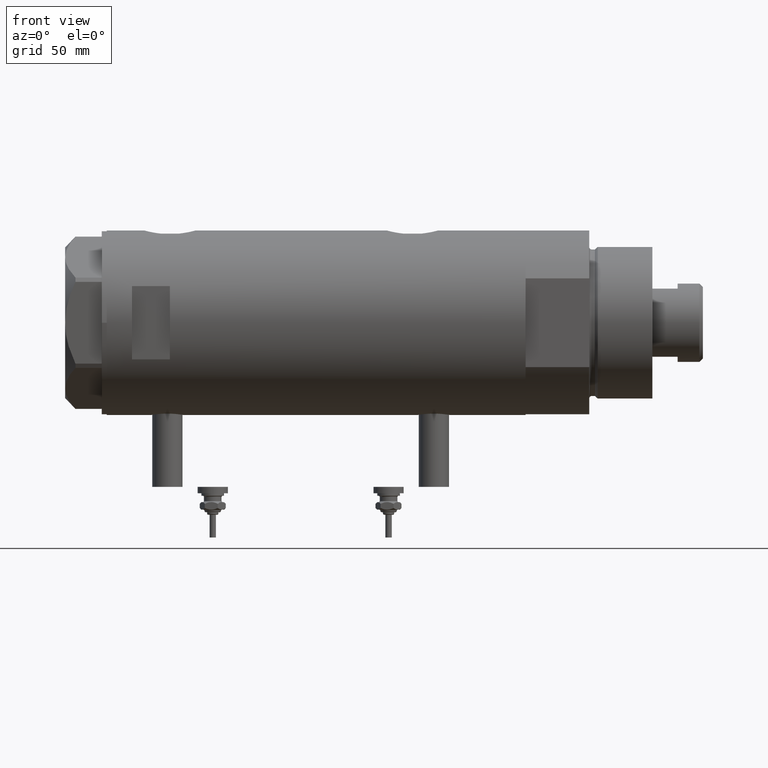
[diagram: clean part render]
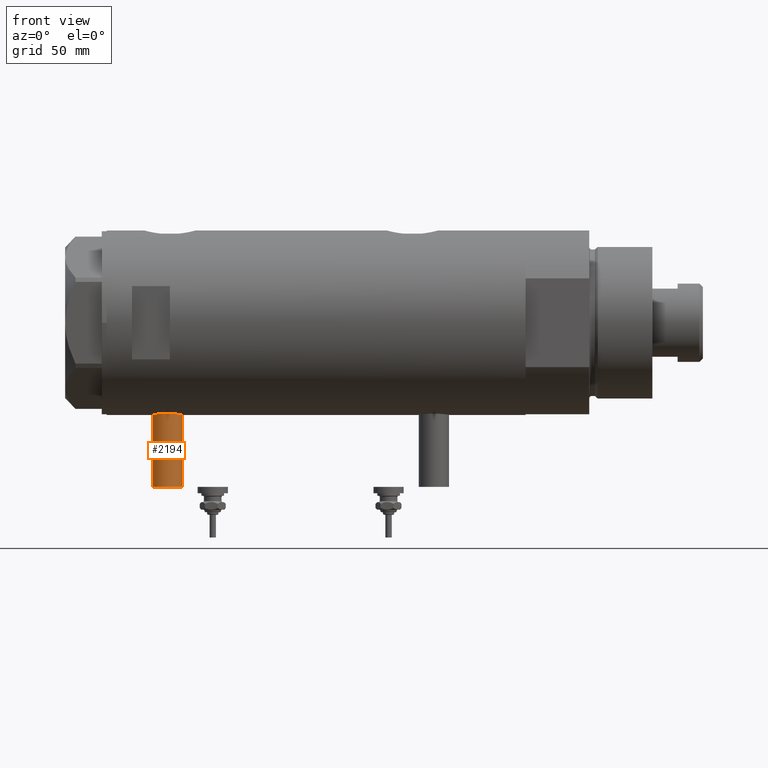
[diagram: same view with one face highlighted and labeled with its STEP entity id]
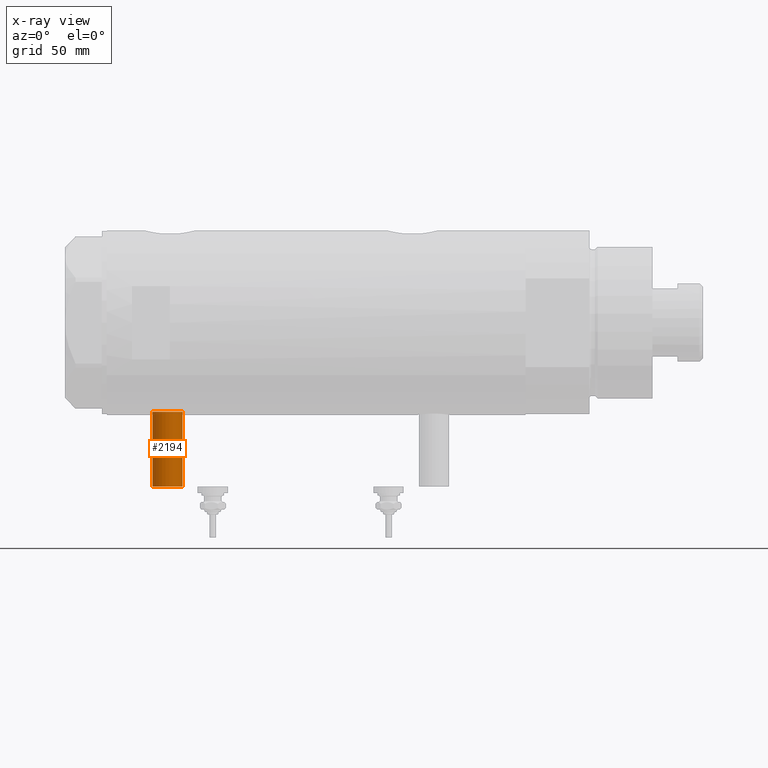
[diagram: x-ray of the same camera — body ghosted, the highlighted face saturated]
A machine part, front view. The second image highlights one B-rep face of the part: STEP entity #2194.
The next image is the same camera in x-ray: the body ghosted, the highlighted face saturated — about 0% of this face is hidden behind the body in this view.
In plain terms, the highlighted cylindrical surface (edge-blend (fillet) strip) has radius 6 mm, axis along (0, 0, 1).
Its self-contained STEP definition (entity closure, byte-faithful):
#31 = VERTEX_POINT ( 'NONE', #5157 ) ;
#102 = CARTESIAN_POINT ( 'NONE',  ( -65.00000000000000000, 0.000000000000000000, 58.89999999999999858 ) ) ;
#134 = DIRECTION ( 'NONE',  ( -1.000000000000000000, 0.000000000000000000, 0.000000000000000000 ) ) ;
#386 = VECTOR ( 'NONE', #4531, 1000.000000000000000 ) ;
#387 = CIRCLE ( 'NONE', #2688, 5.999999999999998224 ) ;
#420 = EDGE_CURVE ( 'NONE', #3378, #31, #2766, .T. ) ;
#648 = CYLINDRICAL_SURFACE ( 'NONE', #2103, 5.999999999999998224 ) ;
#670 = VECTOR ( 'NONE', #5423, 1000.000000000000000 ) ;
#738 = CARTESIAN_POINT ( 'NONE',  ( -65.00000000000000000, 0.000000000000000000, 52.90000000000000568 ) ) ;
#944 = LINE ( 'NONE', #4078, #386 ) ;
#1628 = VERTEX_POINT ( 'NONE', #1787 ) ;
#1787 = CARTESIAN_POINT ( 'NONE',  ( -35.29999999999999716, 0.000000000000000000, 52.90000000000000568 ) ) ;
#2103 = AXIS2_PLACEMENT_3D ( 'NONE', #102, #3763, #2487 ) ;
#2165 = EDGE_CURVE ( 'NONE', #1628, #4976, #387, .T. ) ;
#2194 = ADVANCED_FACE ( 'NONE', ( #5687 ), #648, .T. ) ;
#2378 = CARTESIAN_POINT ( 'NONE',  ( -35.29999999999999716, 0.000000000000000000, 58.89999999999999858 ) ) ;
#2487 = DIRECTION ( 'NONE',  ( 0.000000000000000000, 0.000000000000000000, -1.000000000000000000 ) ) ;
#2688 = AXIS2_PLACEMENT_3D ( 'NONE', #2378, #134, #3390 ) ;
#2766 = CIRCLE ( 'NONE', #4595, 5.999999999999998224 ) ;
#3378 = VERTEX_POINT ( 'NONE', #738 ) ;
#3390 = DIRECTION ( 'NONE',  ( 0.000000000000000000, 0.000000000000000000, 1.000000000000000000 ) ) ;
#3573 = CARTESIAN_POINT ( 'NONE',  ( -65.00000000000000000, 7.347880794884112834E-16, 64.90000000000000568 ) ) ;
#3763 = DIRECTION ( 'NONE',  ( 1.000000000000000000, -0.000000000000000000, -0.000000000000000000 ) ) ;
#3793 = ORIENTED_EDGE ( 'NONE', *, *, #420, .F. ) ;
#4037 = ORIENTED_EDGE ( 'NONE', *, *, #5543, .F. ) ;
#4078 = CARTESIAN_POINT ( 'NONE',  ( -65.00000000000000000, 0.000000000000000000, 52.90000000000000568 ) ) ;
#4118 = LINE ( 'NONE', #3573, #670 ) ;
#4166 = ORIENTED_EDGE ( 'NONE', *, *, #4470, .T. ) ;
#4470 = EDGE_CURVE ( 'NONE', #3378, #1628, #944, .T. ) ;
#4499 = EDGE_LOOP ( 'NONE', ( #4037, #3793, #4166, #5755 ) ) ;
#4531 = DIRECTION ( 'NONE',  ( 1.000000000000000000, -0.000000000000000000, -0.000000000000000000 ) ) ;
#4595 = AXIS2_PLACEMENT_3D ( 'NONE', #5754, #5279, #4783 ) ;
#4783 = DIRECTION ( 'NONE',  ( 0.000000000000000000, 0.000000000000000000, 1.000000000000000000 ) ) ;
#4976 = VERTEX_POINT ( 'NONE', #5303 ) ;
#5157 = CARTESIAN_POINT ( 'NONE',  ( -65.00000000000000000, 7.347880794884108889E-16, 64.90000000000000568 ) ) ;
#5279 = DIRECTION ( 'NONE',  ( -1.000000000000000000, 0.000000000000000000, 0.000000000000000000 ) ) ;
#5303 = CARTESIAN_POINT ( 'NONE',  ( -35.29999999999999716, 7.347880794884108889E-16, 64.90000000000000568 ) ) ;
#5423 = DIRECTION ( 'NONE',  ( 1.000000000000000000, -0.000000000000000000, -0.000000000000000000 ) ) ;
#5543 = EDGE_CURVE ( 'NONE', #31, #4976, #4118, .T. ) ;
#5687 = FACE_OUTER_BOUND ( 'NONE', #4499, .T. ) ;
#5754 = CARTESIAN_POINT ( 'NONE',  ( -65.00000000000000000, 0.000000000000000000, 58.89999999999999858 ) ) ;
#5755 = ORIENTED_EDGE ( 'NONE', *, *, #2165, .T. ) ;